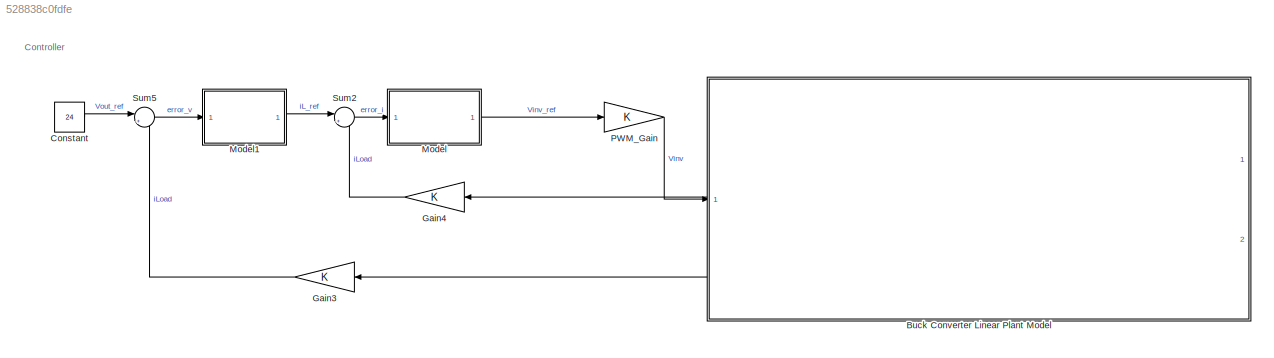
MODEL slx_528838c0fdfe
KIND model
CONFIG AbsTol = auto
CONFIG EnableMultiTasking = off
CONFIG FixedStep = auto
CONFIG MaxStep = auto
CONFIG MinStep = auto
CONFIG RelTol = 1e-3
CONFIG SampleTimeConstraint = Unconstrained
CONFIG Solver = ode23s
CONFIG SolverName = ode23s
CONFIG StartTime = 0.0
CONFIG StopTime = 0.6
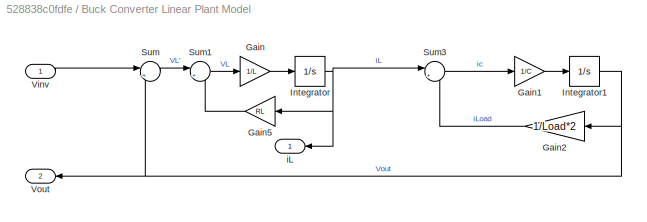
BLOCK [SubSystem] Buck Converter Linear Plant Model
  PortSchema = {"entries":[{"content":{"sides":[{"content":{"connectorIds":["In1","Out1","Out2"]},"type":"ConnectorPlacement.EquallySpacedRectSide","uuid":"b66999c5-eb46-47e5-8c3d-17284b7a3d16"},{"content":{"connectorIds":[],"side":"RIGHT"},"type":"ConnectorPlacement.EquallySpacedRectSide","uuid":"17d4eac5-cf5c-4a79-9618-dbb8569cb044"},{"content":{"connectorIds":[],"side":"TOP"},"type":"ConnectorPlacement.Equall...<+250ch>
  Ports = [1, 2]
  RequestExecContextInheritance = off
BLOCK [Gain] Buck Converter Linear Plant Model/Gain
  Gain = 1/L
BLOCK [Gain] Buck Converter Linear Plant Model/Gain1
  Gain = 1/C
BLOCK [Gain] Buck Converter Linear Plant Model/Gain2
  Gain = 1/Load*2
BLOCK [Gain] Buck Converter Linear Plant Model/Gain5
  Gain = RL
BLOCK [Integrator] Buck Converter Linear Plant Model/Integrator
  Ports = [1, 1]
BLOCK [Integrator] Buck Converter Linear Plant Model/Integrator1
  Ports = [1, 1]
BLOCK [Sum] Buck Converter Linear Plant Model/Sum
  Inputs = |+-
  Ports = [2, 1]
BLOCK [Sum] Buck Converter Linear Plant Model/Sum1
  Inputs = |+-
  Ports = [2, 1]
BLOCK [Sum] Buck Converter Linear Plant Model/Sum3
  Inputs = |+-
  Ports = [2, 1]
BLOCK [Inport] Buck Converter Linear Plant Model/Vinv
BLOCK [Outport] Buck Converter Linear Plant Model/Vout
  Port = 2
BLOCK [Outport] Buck Converter Linear Plant Model/iL
BLOCK [Constant] Constant
  Value = 24
BLOCK [Gain] Gain3
BLOCK [Gain] Gain4
BLOCK [ModelReference] Model
  ModelNameDialog = Current_PI.slx
  ModelReferenceVersion = 1.10
  Ports = [1, 1]
BLOCK [ModelReference] Model1
  ModelNameDialog = Voltage_PI.slx
  ModelReferenceVersion = 1.10
  Ports = [1, 1]
BLOCK [Gain] PWM_Gain
BLOCK [Sum] Sum2
  Inputs = |+-
  Ports = [2, 1]
BLOCK [Sum] Sum5
  Inputs = |+-
  Ports = [2, 1]
ANNOTATION (root): Controller
LINE Buck Converter Linear Plant Model/Gain1:1 -> Buck Converter Linear Plant Model/Integrator1:1
LINE Buck Converter Linear Plant Model/Gain2:1 -> Buck Converter Linear Plant Model/Sum3:2
LINE Buck Converter Linear Plant Model/Gain5:1 -> Buck Converter Linear Plant Model/Sum1:2
LINE Buck Converter Linear Plant Model/Gain:1 -> Buck Converter Linear Plant Model/Integrator:1
NET Buck Converter Linear Plant Model/Integrator1:1 -> Buck Converter Linear Plant Model/Gain2:1, Buck Converter Linear Plant Model/Sum:2, Buck Converter Linear Plant Model/Vout:1
NET Buck Converter Linear Plant Model/Integrator:1 -> Buck Converter Linear Plant Model/Gain5:1, Buck Converter Linear Plant Model/Sum3:1, Buck Converter Linear Plant Model/iL:1
LINE Buck Converter Linear Plant Model/Sum1:1 -> Buck Converter Linear Plant Model/Gain:1
LINE Buck Converter Linear Plant Model/Sum3:1 -> Buck Converter Linear Plant Model/Gain1:1
LINE Buck Converter Linear Plant Model/Sum:1 -> Buck Converter Linear Plant Model/Sum1:1
LINE Buck Converter Linear Plant Model/Vinv:1 -> Buck Converter Linear Plant Model/Sum:1
LINE Buck Converter Linear Plant Model:1 -> Gain4:1
LINE Buck Converter Linear Plant Model:2 -> Gain3:1
LINE Constant:1 -> Sum5:1
LINE Gain3:1 -> Sum5:2
LINE Gain4:1 -> Sum2:2
LINE Model1:1 -> Sum2:1
LINE Model:1 -> PWM_Gain:1
LINE PWM_Gain:1 -> Buck Converter Linear Plant Model:1
LINE Sum2:1 -> Model:1
LINE Sum5:1 -> Model1:1
note: NET lines group one-source signal fan-out (src -> all destinations, sorted); 1:1 wires keep LINE
